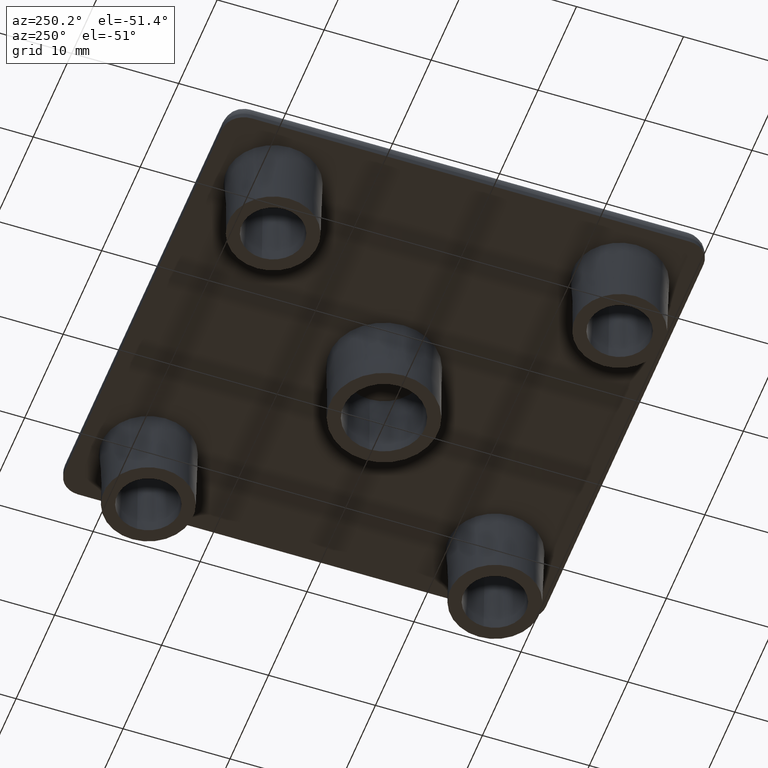
[diagram: clean part render]
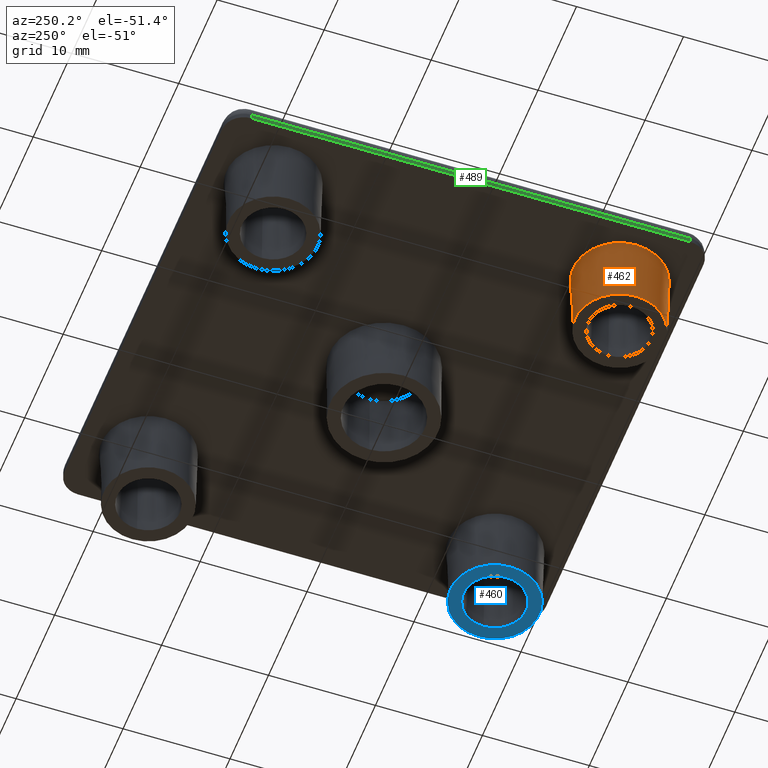
[diagram: same view with three faces highlighted in distinct colors, each labeled with its STEP entity id]
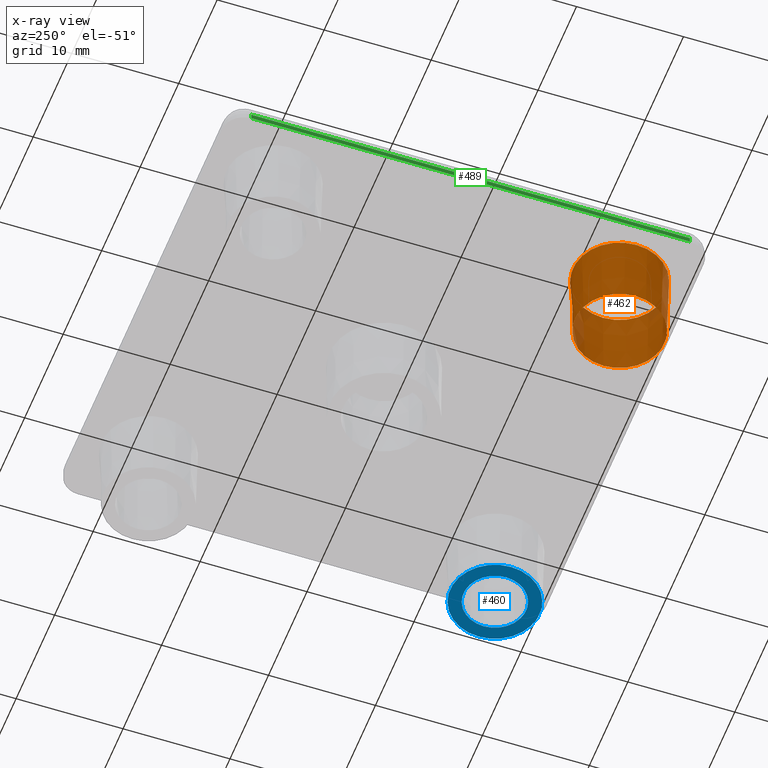
[diagram: x-ray of the same camera — body ghosted, the three highlighted faces saturated]
A machine part, auxiliary view with three faces highlighted in distinct colors.
The next image is the same camera in x-ray (body ghosted, the three faces saturated) — at least one of them is partly hidden behind the body in this view.
Their STEP definitions:

[orange] entity #462 — the highlighted conical surface has half-angle 1.5 deg.
#95=FACE_BOUND('',#163,.T.);
#112=FACE_OUTER_BOUND('',#162,.T.);
#162=EDGE_LOOP('',(#362));
#163=EDGE_LOOP('',(#363));
#208=CIRCLE('',#506,4.35830145098431);
#216=CIRCLE('',#520,4.175);
#248=VERTEX_POINT('',#768);
#260=VERTEX_POINT('',#798);
#288=EDGE_CURVE('',#248,#248,#208,.T.);
#300=EDGE_CURVE('',#260,#260,#216,.T.);
#362=ORIENTED_EDGE('',*,*,#300,.F.);
#363=ORIENTED_EDGE('',*,*,#288,.F.);
#448=CONICAL_SURFACE('',#519,4.175,1.5);
#462=ADVANCED_FACE('',(#112,#95),#448,.T.);
#506=AXIS2_PLACEMENT_3D('',#769,#599,#600);
#519=AXIS2_PLACEMENT_3D('',#797,#629,#630);
#520=AXIS2_PLACEMENT_3D('',#799,#631,#632);
#599=DIRECTION('center_axis',(0.,0.,1.));
#600=DIRECTION('ref_axis',(-1.,0.,0.));
#629=DIRECTION('center_axis',(0.,0.,1.));
#630=DIRECTION('ref_axis',(-1.,0.,0.));
#631=DIRECTION('center_axis',(0.,0.,-1.));
#632=DIRECTION('ref_axis',(-1.,0.,0.));
#768=CARTESIAN_POINT('',(-11.8416985490157,-16.2,0.));
#769=CARTESIAN_POINT('Origin',(-16.2,-16.2,0.));
#797=CARTESIAN_POINT('Origin',(-16.2,-16.2,-7.));
#798=CARTESIAN_POINT('',(-12.025,-16.2,-7.));
#799=CARTESIAN_POINT('Origin',(-16.2,-16.2,-7.));

[blue] entity #460 — the highlighted planar face has unit normal (0, 0, 1).
#70=PLANE('',#515);
#93=FACE_BOUND('',#159,.T.);
#110=FACE_OUTER_BOUND('',#158,.T.);
#158=EDGE_LOOP('',(#358));
#159=EDGE_LOOP('',(#359));
#211=CIRCLE('',#511,2.925);
#213=CIRCLE('',#514,4.175);
#255=VERTEX_POINT('',#784);
#257=VERTEX_POINT('',#789);
#295=EDGE_CURVE('',#255,#255,#211,.T.);
#297=EDGE_CURVE('',#257,#257,#213,.T.);
#358=ORIENTED_EDGE('',*,*,#297,.T.);
#359=ORIENTED_EDGE('',*,*,#295,.T.);
#460=ADVANCED_FACE('',(#110,#93),#70,.F.);
#511=AXIS2_PLACEMENT_3D('',#785,#613,#614);
#514=AXIS2_PLACEMENT_3D('',#790,#619,#620);
#515=AXIS2_PLACEMENT_3D('',#791,#621,#622);
#613=DIRECTION('center_axis',(0.,0.,1.));
#614=DIRECTION('ref_axis',(-1.,0.,0.));
#619=DIRECTION('center_axis',(0.,0.,-1.));
#620=DIRECTION('ref_axis',(-1.,0.,0.));
#621=DIRECTION('center_axis',(0.,0.,1.));
#622=DIRECTION('ref_axis',(1.,0.,0.));
#784=CARTESIAN_POINT('',(19.125,-16.2,-7.));
#785=CARTESIAN_POINT('Origin',(16.2,-16.2,-7.));
#789=CARTESIAN_POINT('',(20.375,-16.2,-7.));
#790=CARTESIAN_POINT('Origin',(16.2,-16.2,-7.));
#791=CARTESIAN_POINT('Origin',(16.2,-16.2,-7.));

[green] entity #489 — the highlighted planar face has unit normal (-1, 0, 0).
#29=LINE('',#762,#49);
#38=LINE('',#841,#58);
#44=LINE('',#862,#64);
#46=LINE('',#866,#66);
#49=VECTOR('',#593,41.);
#58=VECTOR('',#692,0.5);
#64=VECTOR('',#720,0.5);
#66=VECTOR('',#726,41.);
#81=PLANE('',#565);
#139=FACE_OUTER_BOUND('',#197,.T.);
#197=EDGE_LOOP('',(#435,#436,#437,#438));
#244=VERTEX_POINT('',#759);
#245=VERTEX_POINT('',#761);
#270=VERTEX_POINT('',#837);
#273=VERTEX_POINT('',#855);
#284=EDGE_CURVE('',#244,#245,#29,.T.);
#316=EDGE_CURVE('',#245,#270,#38,.T.);
#328=EDGE_CURVE('',#273,#244,#44,.T.);
#330=EDGE_CURVE('',#270,#273,#46,.T.);
#435=ORIENTED_EDGE('',*,*,#316,.F.);
#436=ORIENTED_EDGE('',*,*,#284,.F.);
#437=ORIENTED_EDGE('',*,*,#328,.F.);
#438=ORIENTED_EDGE('',*,*,#330,.F.);
#489=ADVANCED_FACE('',(#139),#81,.T.);
#565=AXIS2_PLACEMENT_3D('',#870,#733,#734);
#593=DIRECTION('',(9.86864910777917E-17,1.,0.));
#692=DIRECTION('',(0.,0.,1.));
#720=DIRECTION('',(0.,0.,-1.));
#726=DIRECTION('',(-9.86864910777917E-17,-1.,0.));
#733=DIRECTION('center_axis',(-1.,9.86864910777917E-17,0.));
#734=DIRECTION('ref_axis',(0.,-1.,0.));
#759=CARTESIAN_POINT('',(-22.5,-20.5,0.));
#761=CARTESIAN_POINT('',(-22.5,20.5,0.));
#762=CARTESIAN_POINT('',(-22.5,-22.5,0.));
#837=CARTESIAN_POINT('',(-22.5,20.5,0.5));
#841=CARTESIAN_POINT('',(-22.5,20.5,0.));
#855=CARTESIAN_POINT('',(-22.5,-20.5,0.5));
#862=CARTESIAN_POINT('',(-22.5,-20.5,0.));
#866=CARTESIAN_POINT('',(-22.5,11.25,0.5));
#870=CARTESIAN_POINT('Origin',(-22.5,22.5,0.));